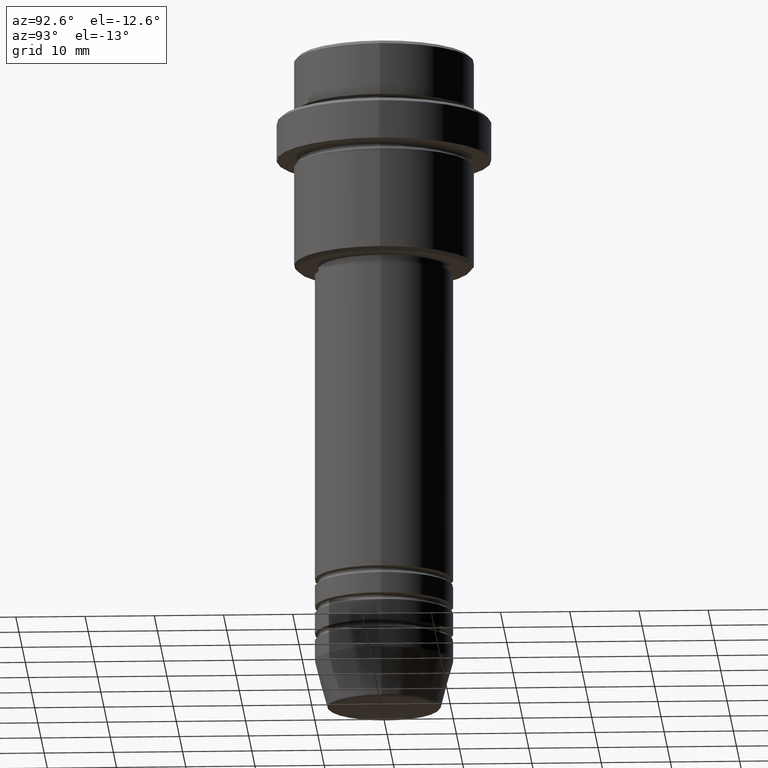
[diagram: clean part render]
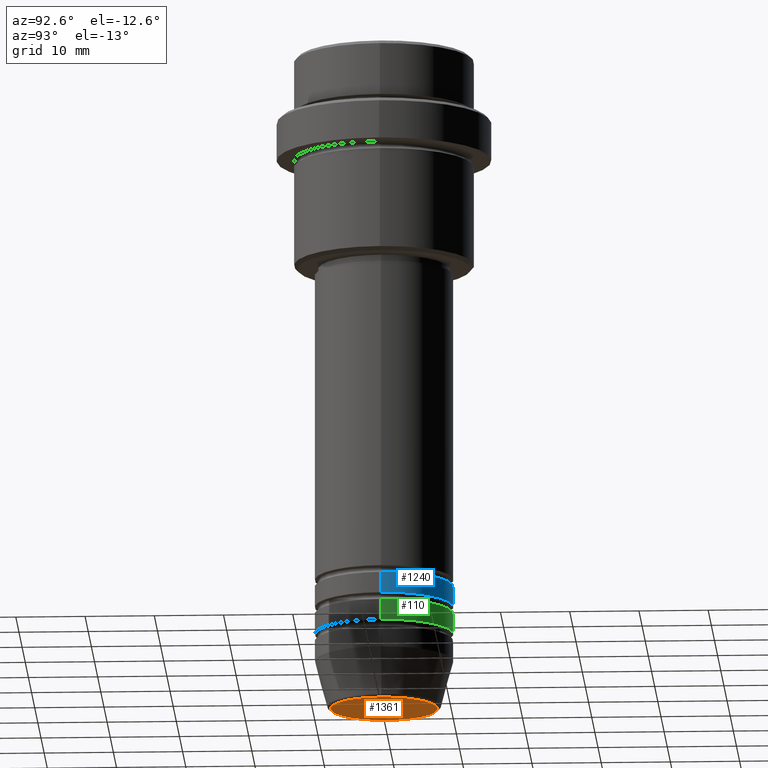
[diagram: same view with three faces highlighted in distinct colors, each labeled with its STEP entity id]
A machine part, auxiliary view with three faces highlighted in distinct colors.
Their STEP definitions:

[orange] entity #1361 — the highlighted planar face has unit normal (0, -0, 1).
#8 = EDGE_CURVE ( 'NONE', #1415, #914, #1110, .T. ) ;
#19 = CARTESIAN_POINT ( 'NONE',  ( 7.740692158992652949, 0.000000000000000000, -96.00000000000000000 ) ) ;
#53 = CARTESIAN_POINT ( 'NONE',  ( -7.740692158992652949, 9.775343368540035191E-16, -96.00000000000000000 ) ) ;
#83 = AXIS2_PLACEMENT_3D ( 'NONE', #243, #1331, #127 ) ;
#127 = DIRECTION ( 'NONE',  ( 1.000000000000000000, 0.000000000000000000, 0.000000000000000000 ) ) ;
#204 = DIRECTION ( 'NONE',  ( 0.000000000000000000, -0.000000000000000000, 1.000000000000000000 ) ) ;
#243 = CARTESIAN_POINT ( 'NONE',  ( 0.000000000000000000, 0.000000000000000000, -96.00000000000000000 ) ) ;
#291 = CARTESIAN_POINT ( 'NONE',  ( 0.000000000000000000, 0.000000000000000000, -96.00000000000000000 ) ) ;
#365 = ORIENTED_EDGE ( 'NONE', *, *, #8, .T. ) ;
#491 = CIRCLE ( 'NONE', #83, 7.740692158992652949 ) ;
#558 = EDGE_CURVE ( 'NONE', #914, #1415, #491, .T. ) ;
#581 = DIRECTION ( 'NONE',  ( 1.000000000000000000, 0.000000000000000000, 0.000000000000000000 ) ) ;
#645 = ORIENTED_EDGE ( 'NONE', *, *, #558, .T. ) ;
#674 = DIRECTION ( 'NONE',  ( 0.000000000000000000, 0.000000000000000000, -1.000000000000000000 ) ) ;
#732 = EDGE_LOOP ( 'NONE', ( #365, #645 ) ) ;
#914 = VERTEX_POINT ( 'NONE', #53 ) ;
#1025 = CARTESIAN_POINT ( 'NONE',  ( 0.000000000000000000, 0.000000000000000000, -96.00000000000000000 ) ) ;
#1110 = CIRCLE ( 'NONE', #1205, 7.740692158992652949 ) ;
#1205 = AXIS2_PLACEMENT_3D ( 'NONE', #1025, #674, #581 ) ;
#1227 = PLANE ( 'NONE',  #1299 ) ;
#1299 = AXIS2_PLACEMENT_3D ( 'NONE', #291, #204, #1413 ) ;
#1330 = FACE_OUTER_BOUND ( 'NONE', #732, .T. ) ;
#1331 = DIRECTION ( 'NONE',  ( 0.000000000000000000, 0.000000000000000000, -1.000000000000000000 ) ) ;
#1361 = ADVANCED_FACE ( 'NONE', ( #1330 ), #1227, .F. ) ;
#1413 = DIRECTION ( 'NONE',  ( 1.000000000000000000, 0.000000000000000000, 0.000000000000000000 ) ) ;
#1415 = VERTEX_POINT ( 'NONE', #19 ) ;

[blue] entity #1240 — the highlighted cylindrical surface (partial cylindrical patch) has radius 10 mm, axis along (-0, -0, 1).
#26 = CARTESIAN_POINT ( 'NONE',  ( 10.00000000000000000, 0.000000000000000000, -80.99999999999987210 ) ) ;
#28 = EDGE_CURVE ( 'NONE', #631, #355, #122, .T. ) ;
#121 = CIRCLE ( 'NONE', #925, 10.00000000000000000 ) ;
#122 = LINE ( 'NONE', #151, #332 ) ;
#151 = CARTESIAN_POINT ( 'NONE',  ( -10.00000000000000000, 1.224646799147353256E-15, 0.000000000000000000 ) ) ;
#154 = ORIENTED_EDGE ( 'NONE', *, *, #1234, .F. ) ;
#188 = FACE_OUTER_BOUND ( 'NONE', #782, .T. ) ;
#207 = VERTEX_POINT ( 'NONE', #269 ) ;
#248 = DIRECTION ( 'NONE',  ( -0.000000000000000000, -0.000000000000000000, 1.000000000000000000 ) ) ;
#269 = CARTESIAN_POINT ( 'NONE',  ( 10.00000000000000000, 0.000000000000000000, -77.99999999999987210 ) ) ;
#272 = CARTESIAN_POINT ( 'NONE',  ( 10.00000000000000000, 0.000000000000000000, 0.000000000000000000 ) ) ;
#332 = VECTOR ( 'NONE', #248, 1000.000000000000000 ) ;
#355 = VERTEX_POINT ( 'NONE', #1301 ) ;
#372 = AXIS2_PLACEMENT_3D ( 'NONE', #1367, #958, #1065 ) ;
#383 = ORIENTED_EDGE ( 'NONE', *, *, #443, .F. ) ;
#431 = CIRCLE ( 'NONE', #1135, 10.00000000000000000 ) ;
#443 = EDGE_CURVE ( 'NONE', #207, #355, #431, .T. ) ;
#495 = DIRECTION ( 'NONE',  ( -0.000000000000000000, -0.000000000000000000, 1.000000000000000000 ) ) ;
#498 = DIRECTION ( 'NONE',  ( -0.000000000000000000, -0.000000000000000000, 1.000000000000000000 ) ) ;
#588 = EDGE_CURVE ( 'NONE', #765, #631, #121, .T. ) ;
#631 = VERTEX_POINT ( 'NONE', #1040 ) ;
#632 = CYLINDRICAL_SURFACE ( 'NONE', #372, 10.00000000000000000 ) ;
#668 = ORIENTED_EDGE ( 'NONE', *, *, #588, .T. ) ;
#691 = DIRECTION ( 'NONE',  ( -0.000000000000000000, -0.000000000000000000, 1.000000000000000000 ) ) ;
#765 = VERTEX_POINT ( 'NONE', #26 ) ;
#782 = EDGE_LOOP ( 'NONE', ( #668, #930, #383, #154 ) ) ;
#925 = AXIS2_PLACEMENT_3D ( 'NONE', #1149, #498, #933 ) ;
#930 = ORIENTED_EDGE ( 'NONE', *, *, #28, .T. ) ;
#933 = DIRECTION ( 'NONE',  ( 1.000000000000000000, 0.000000000000000000, 0.000000000000000000 ) ) ;
#943 = LINE ( 'NONE', #272, #1095 ) ;
#958 = DIRECTION ( 'NONE',  ( -0.000000000000000000, -0.000000000000000000, 1.000000000000000000 ) ) ;
#1006 = CARTESIAN_POINT ( 'NONE',  ( 0.000000000000000000, 0.000000000000000000, -77.99999999999987210 ) ) ;
#1040 = CARTESIAN_POINT ( 'NONE',  ( -10.00000000000000000, 1.224646799147353256E-15, -80.99999999999987210 ) ) ;
#1065 = DIRECTION ( 'NONE',  ( 1.000000000000000000, 0.000000000000000000, 0.000000000000000000 ) ) ;
#1095 = VECTOR ( 'NONE', #495, 1000.000000000000000 ) ;
#1135 = AXIS2_PLACEMENT_3D ( 'NONE', #1006, #691, #1346 ) ;
#1149 = CARTESIAN_POINT ( 'NONE',  ( 0.000000000000000000, 0.000000000000000000, -80.99999999999987210 ) ) ;
#1234 = EDGE_CURVE ( 'NONE', #765, #207, #943, .T. ) ;
#1240 = ADVANCED_FACE ( 'NONE', ( #188 ), #632, .T. ) ;
#1301 = CARTESIAN_POINT ( 'NONE',  ( -10.00000000000000000, 1.224646799147353256E-15, -77.99999999999987210 ) ) ;
#1346 = DIRECTION ( 'NONE',  ( 1.000000000000000000, 0.000000000000000000, 0.000000000000000000 ) ) ;
#1367 = CARTESIAN_POINT ( 'NONE',  ( 0.000000000000000000, 0.000000000000000000, 0.000000000000000000 ) ) ;

[green] entity #110 — the highlighted cylindrical surface (partial cylindrical patch) has radius 10 mm, axis along (-0, -0, 1).
#72 = CARTESIAN_POINT ( 'NONE',  ( -10.00000000000000000, 1.224646799147353256E-15, 0.000000000000000000 ) ) ;
#110 = ADVANCED_FACE ( 'NONE', ( #1141 ), #917, .T. ) ;
#162 = CARTESIAN_POINT ( 'NONE',  ( 0.000000000000000000, 0.000000000000000000, -84.99999999999988631 ) ) ;
#199 = AXIS2_PLACEMENT_3D ( 'NONE', #1193, #425, #1091 ) ;
#239 = CARTESIAN_POINT ( 'NONE',  ( 0.000000000000000000, 0.000000000000000000, 0.000000000000000000 ) ) ;
#246 = ORIENTED_EDGE ( 'NONE', *, *, #323, .F. ) ;
#279 = VERTEX_POINT ( 'NONE', #963 ) ;
#296 = CARTESIAN_POINT ( 'NONE',  ( 10.00000000000000000, 0.000000000000000000, 0.000000000000000000 ) ) ;
#323 = EDGE_CURVE ( 'NONE', #279, #745, #1387, .T. ) ;
#347 = AXIS2_PLACEMENT_3D ( 'NONE', #239, #1354, #1217 ) ;
#396 = DIRECTION ( 'NONE',  ( -0.000000000000000000, -0.000000000000000000, 1.000000000000000000 ) ) ;
#402 = LINE ( 'NONE', #72, #1132 ) ;
#425 = DIRECTION ( 'NONE',  ( -0.000000000000000000, -0.000000000000000000, 1.000000000000000000 ) ) ;
#510 = VERTEX_POINT ( 'NONE', #805 ) ;
#635 = ORIENTED_EDGE ( 'NONE', *, *, #886, .T. ) ;
#644 = CIRCLE ( 'NONE', #679, 10.00000000000000000 ) ;
#679 = AXIS2_PLACEMENT_3D ( 'NONE', #162, #1389, #853 ) ;
#745 = VERTEX_POINT ( 'NONE', #852 ) ;
#805 = CARTESIAN_POINT ( 'NONE',  ( -10.00000000000000000, 1.224646799147353256E-15, -84.99999999999988631 ) ) ;
#852 = CARTESIAN_POINT ( 'NONE',  ( -10.00000000000000000, 1.224646799147353256E-15, -81.99999999999987210 ) ) ;
#853 = DIRECTION ( 'NONE',  ( 1.000000000000000000, 0.000000000000000000, 0.000000000000000000 ) ) ;
#858 = EDGE_CURVE ( 'NONE', #1094, #279, #962, .T. ) ;
#876 = ORIENTED_EDGE ( 'NONE', *, *, #858, .F. ) ;
#886 = EDGE_CURVE ( 'NONE', #1094, #510, #644, .T. ) ;
#917 = CYLINDRICAL_SURFACE ( 'NONE', #347, 10.00000000000000000 ) ;
#962 = LINE ( 'NONE', #296, #1249 ) ;
#963 = CARTESIAN_POINT ( 'NONE',  ( 10.00000000000000000, 0.000000000000000000, -81.99999999999987210 ) ) ;
#1091 = DIRECTION ( 'NONE',  ( 1.000000000000000000, 0.000000000000000000, 0.000000000000000000 ) ) ;
#1094 = VERTEX_POINT ( 'NONE', #1238 ) ;
#1132 = VECTOR ( 'NONE', #1392, 1000.000000000000000 ) ;
#1141 = FACE_OUTER_BOUND ( 'NONE', #1255, .T. ) ;
#1193 = CARTESIAN_POINT ( 'NONE',  ( 0.000000000000000000, 0.000000000000000000, -81.99999999999987210 ) ) ;
#1195 = EDGE_CURVE ( 'NONE', #510, #745, #402, .T. ) ;
#1217 = DIRECTION ( 'NONE',  ( 1.000000000000000000, 0.000000000000000000, 0.000000000000000000 ) ) ;
#1238 = CARTESIAN_POINT ( 'NONE',  ( 10.00000000000000000, 0.000000000000000000, -84.99999999999988631 ) ) ;
#1249 = VECTOR ( 'NONE', #396, 1000.000000000000000 ) ;
#1255 = EDGE_LOOP ( 'NONE', ( #635, #1267, #246, #876 ) ) ;
#1267 = ORIENTED_EDGE ( 'NONE', *, *, #1195, .T. ) ;
#1354 = DIRECTION ( 'NONE',  ( -0.000000000000000000, -0.000000000000000000, 1.000000000000000000 ) ) ;
#1387 = CIRCLE ( 'NONE', #199, 10.00000000000000000 ) ;
#1389 = DIRECTION ( 'NONE',  ( -0.000000000000000000, -0.000000000000000000, 1.000000000000000000 ) ) ;
#1392 = DIRECTION ( 'NONE',  ( -0.000000000000000000, -0.000000000000000000, 1.000000000000000000 ) ) ;